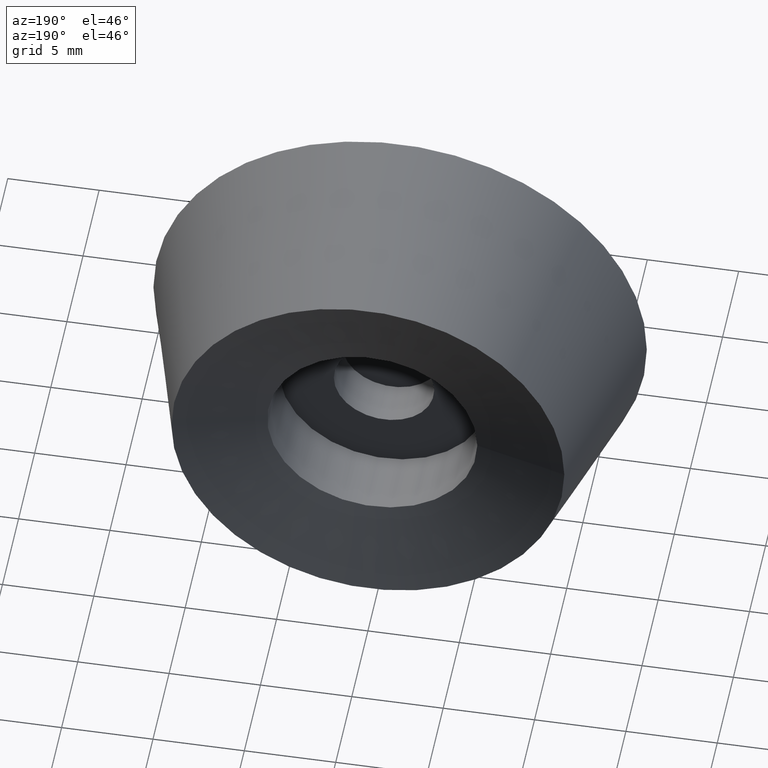
[diagram: clean part render]
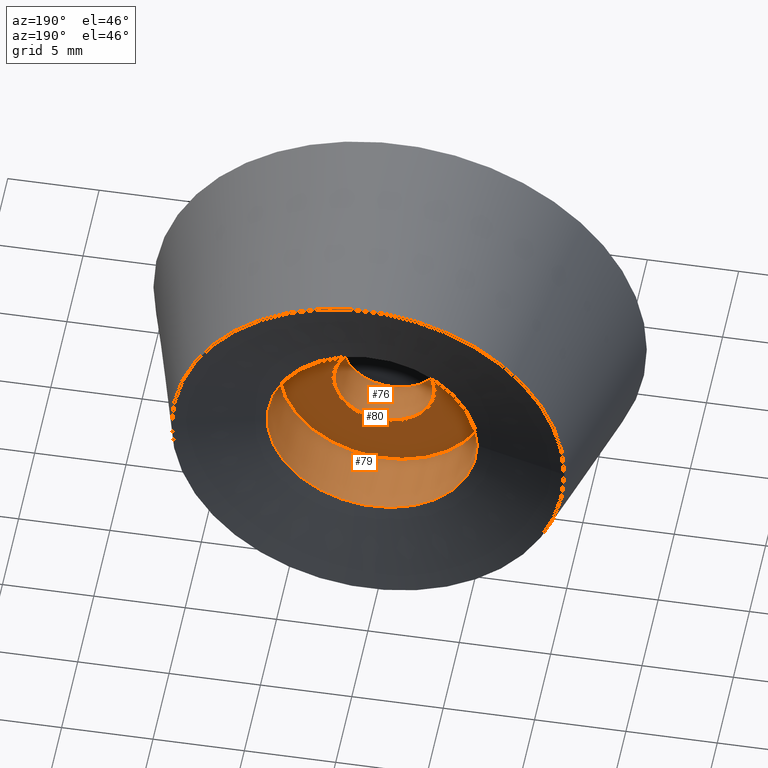
[diagram: same view with one multi-face feature highlighted, each face labeled with its STEP entity id]
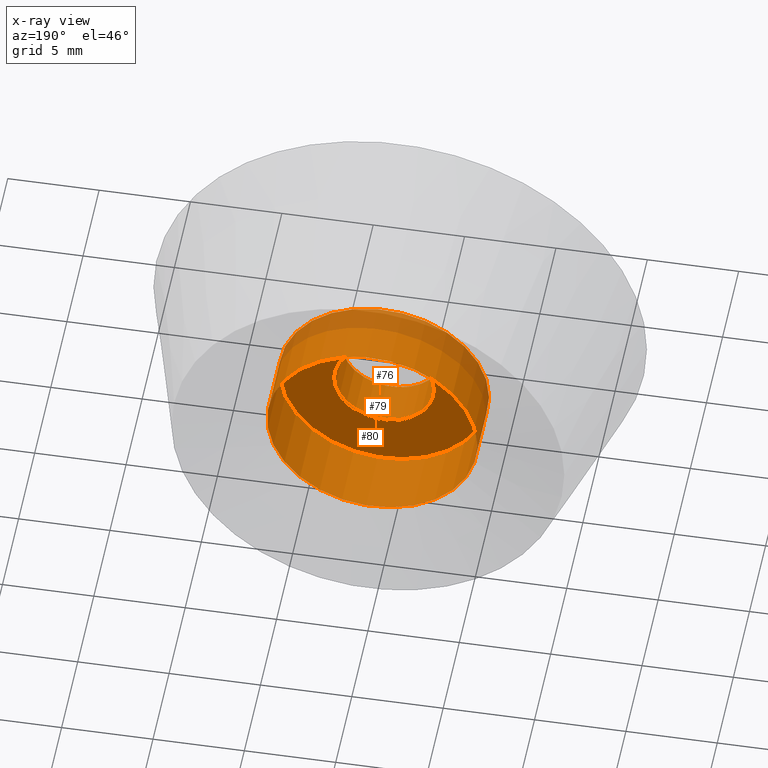
[diagram: x-ray of the same camera — body ghosted, the whole feature saturated]
A machine part, auxiliary view. The highlighted faces form ONE feature: a stepped (counterbored) hole: 2 coaxial cylindrical walls of radii 2.75 -> 5.75 mm joined by 1 annular planar shoulder face(s). The faces share edges in the B-rep.
The next image is the same camera in x-ray: the body ghosted and the whole hole feature saturated, so the bore chain is visible through the body.
Their STEP definitions:
[1] entity #79 (Cylinder):
#22=FACE_BOUND('',#38,.T.);
#28=FACE_OUTER_BOUND('',#37,.T.);
#37=EDGE_LOOP('',(#67));
#38=EDGE_LOOP('',(#68));
#47=CIRCLE('',#91,5.75);
#48=CIRCLE('',#93,5.75);
#53=VERTEX_POINT('',#136);
#54=VERTEX_POINT('',#139);
#59=EDGE_CURVE('',#53,#53,#47,.T.);
#60=EDGE_CURVE('',#54,#54,#48,.T.);
#67=ORIENTED_EDGE('',*,*,#59,.T.);
#68=ORIENTED_EDGE('',*,*,#60,.F.);
#75=CYLINDRICAL_SURFACE('',#92,5.75);
#79=ADVANCED_FACE('',(#28,#22),#75,.F.);
#91=AXIS2_PLACEMENT_3D('',#137,#112,#113);
#92=AXIS2_PLACEMENT_3D('',#138,#114,#115);
#93=AXIS2_PLACEMENT_3D('',#140,#116,#117);
#112=DIRECTION('center_axis',(0.,1.,0.));
#113=DIRECTION('ref_axis',(-1.,0.,0.));
#114=DIRECTION('center_axis',(0.,1.,0.));
#115=DIRECTION('ref_axis',(-1.,0.,0.));
#116=DIRECTION('center_axis',(0.,1.,0.));
#117=DIRECTION('ref_axis',(-1.,0.,0.));
#136=CARTESIAN_POINT('',(-5.75,8.66025403784439,0.));
#137=CARTESIAN_POINT('Origin',(0.,8.66025403784439,0.));
#138=CARTESIAN_POINT('Origin',(0.,7.5,0.));
#139=CARTESIAN_POINT('',(-5.75,5.,0.));
#140=CARTESIAN_POINT('Origin',(0.,5.,0.));
[2] entity #76 (Cylinder):
#20=FACE_BOUND('',#33,.T.);
#25=FACE_OUTER_BOUND('',#32,.T.);
#32=EDGE_LOOP('',(#62));
#33=EDGE_LOOP('',(#63));
#44=CIRCLE('',#86,2.75);
#45=CIRCLE('',#87,2.75);
#50=VERTEX_POINT('',#128);
#51=VERTEX_POINT('',#130);
#56=EDGE_CURVE('',#50,#50,#44,.T.);
#57=EDGE_CURVE('',#51,#51,#45,.T.);
#62=ORIENTED_EDGE('',*,*,#56,.F.);
#63=ORIENTED_EDGE('',*,*,#57,.F.);
#74=CYLINDRICAL_SURFACE('',#85,2.75);
#76=ADVANCED_FACE('',(#25,#20),#74,.F.);
#85=AXIS2_PLACEMENT_3D('',#127,#100,#101);
#86=AXIS2_PLACEMENT_3D('',#129,#102,#103);
#87=AXIS2_PLACEMENT_3D('',#131,#104,#105);
#100=DIRECTION('center_axis',(0.,1.,0.));
#101=DIRECTION('ref_axis',(-1.,0.,0.));
#102=DIRECTION('center_axis',(0.,-1.,0.));
#103=DIRECTION('ref_axis',(-1.,0.,0.));
#104=DIRECTION('center_axis',(0.,1.,0.));
#105=DIRECTION('ref_axis',(-1.,0.,0.));
#127=CARTESIAN_POINT('Origin',(0.,3.75,0.));
#128=CARTESIAN_POINT('',(-2.75,5.,0.));
#129=CARTESIAN_POINT('Origin',(0.,5.,0.));
#130=CARTESIAN_POINT('',(-2.75,2.5,0.));
#131=CARTESIAN_POINT('Origin',(0.,2.5,0.));
[3] entity #80 (Plane):
#18=PLANE('',#94);
#23=FACE_BOUND('',#40,.T.);
#29=FACE_OUTER_BOUND('',#39,.T.);
#39=EDGE_LOOP('',(#69));
#40=EDGE_LOOP('',(#70));
#44=CIRCLE('',#86,2.75);
#48=CIRCLE('',#93,5.75);
#50=VERTEX_POINT('',#128);
#54=VERTEX_POINT('',#139);
#56=EDGE_CURVE('',#50,#50,#44,.T.);
#60=EDGE_CURVE('',#54,#54,#48,.T.);
#69=ORIENTED_EDGE('',*,*,#60,.T.);
#70=ORIENTED_EDGE('',*,*,#56,.T.);
#80=ADVANCED_FACE('',(#29,#23),#18,.T.);
#86=AXIS2_PLACEMENT_3D('',#129,#102,#103);
#93=AXIS2_PLACEMENT_3D('',#140,#116,#117);
#94=AXIS2_PLACEMENT_3D('',#141,#118,#119);
#102=DIRECTION('center_axis',(0.,-1.,0.));
#103=DIRECTION('ref_axis',(-1.,0.,0.));
#116=DIRECTION('center_axis',(0.,1.,0.));
#117=DIRECTION('ref_axis',(-1.,0.,0.));
#118=DIRECTION('center_axis',(0.,1.,0.));
#119=DIRECTION('ref_axis',(-1.,0.,0.));
#128=CARTESIAN_POINT('',(-2.75,5.,0.));
#129=CARTESIAN_POINT('Origin',(0.,5.,0.));
#139=CARTESIAN_POINT('',(-5.75,5.,0.));
#140=CARTESIAN_POINT('Origin',(0.,5.,0.));
#141=CARTESIAN_POINT('Origin',(0.,5.,0.));